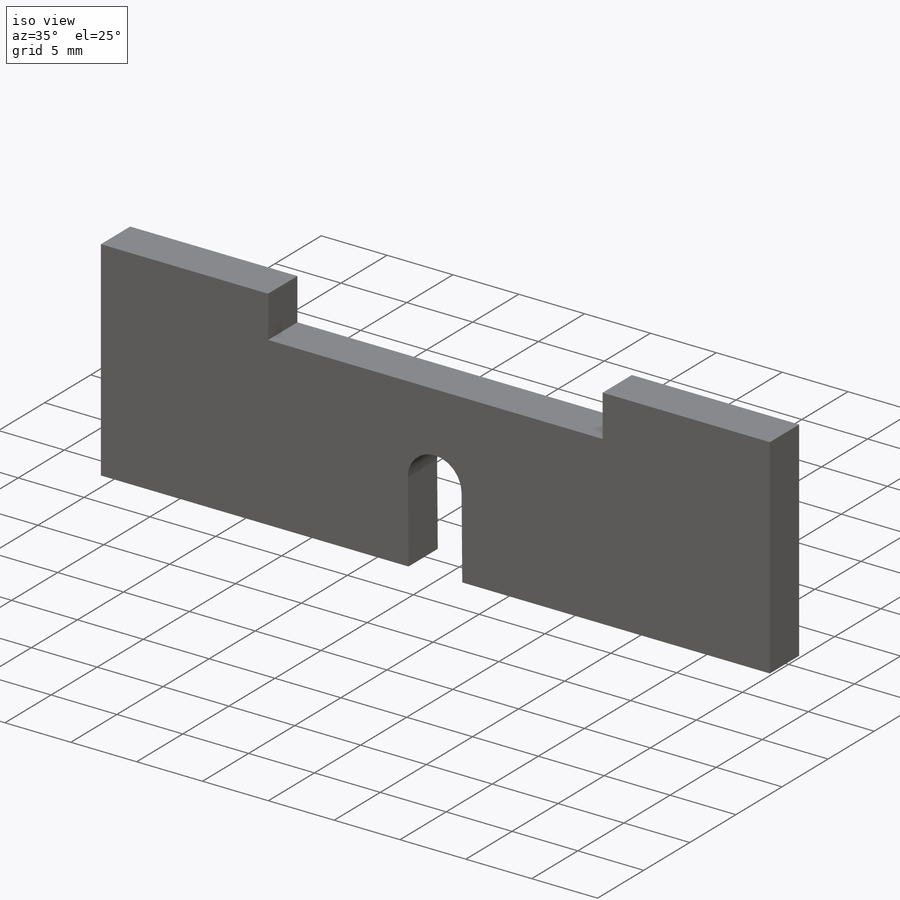
[diagram: iso view]
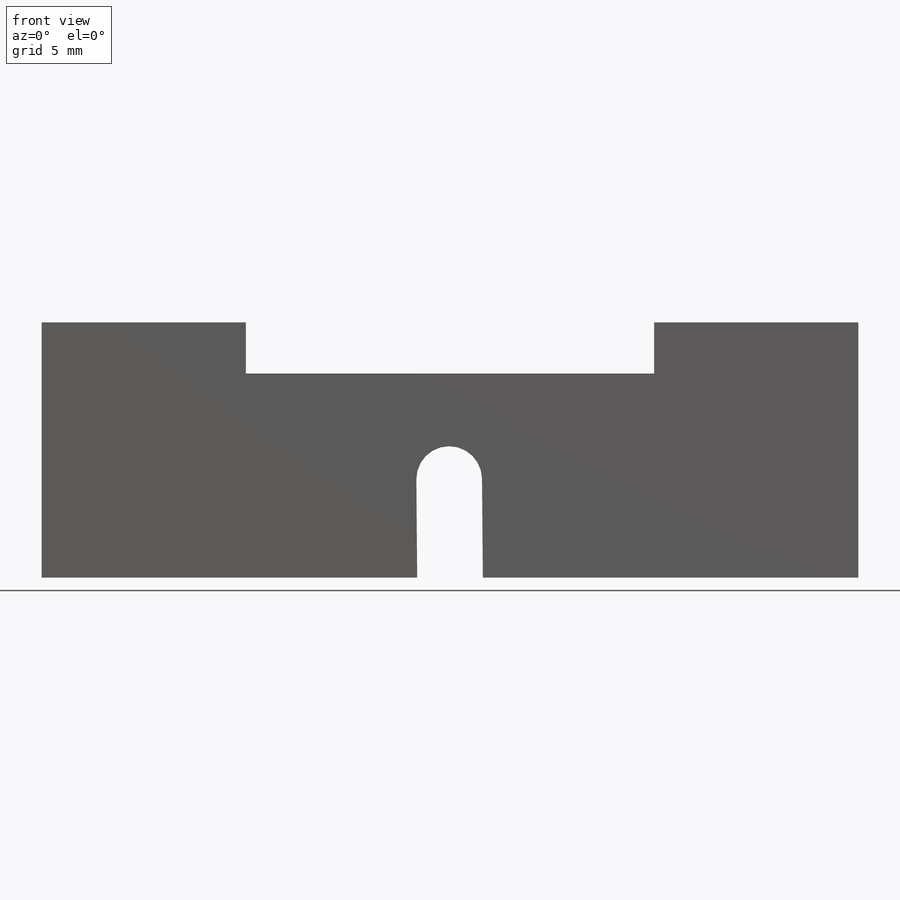
[diagram: front view]
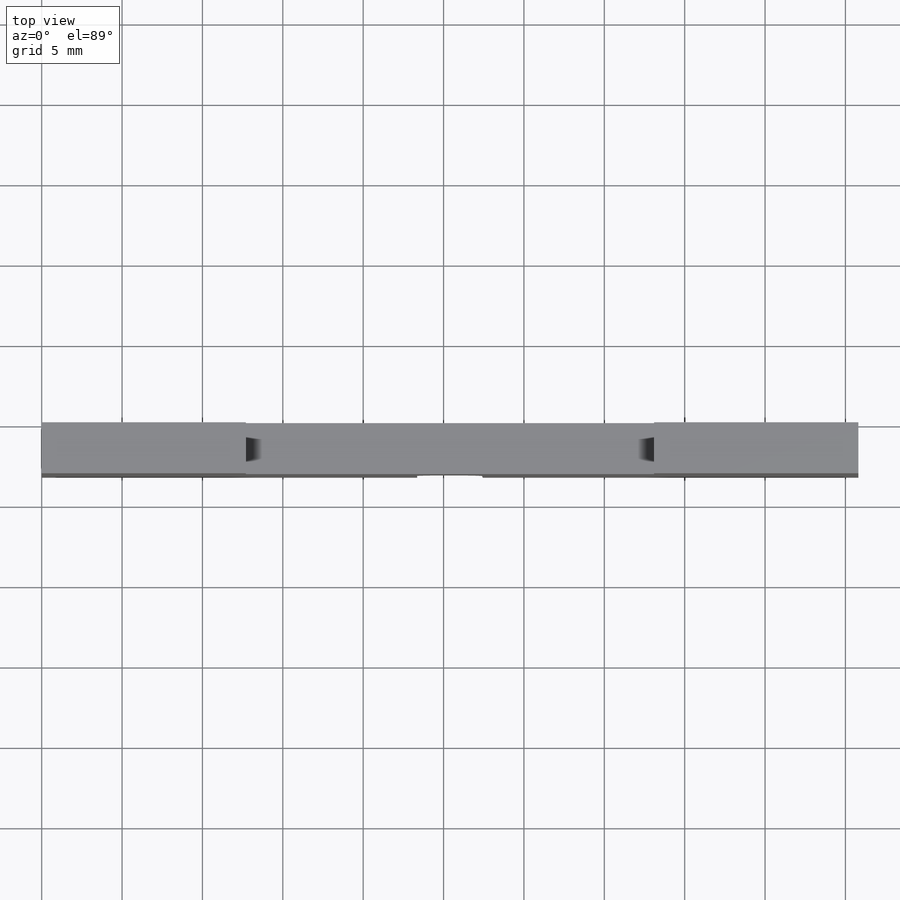
[diagram: top view]
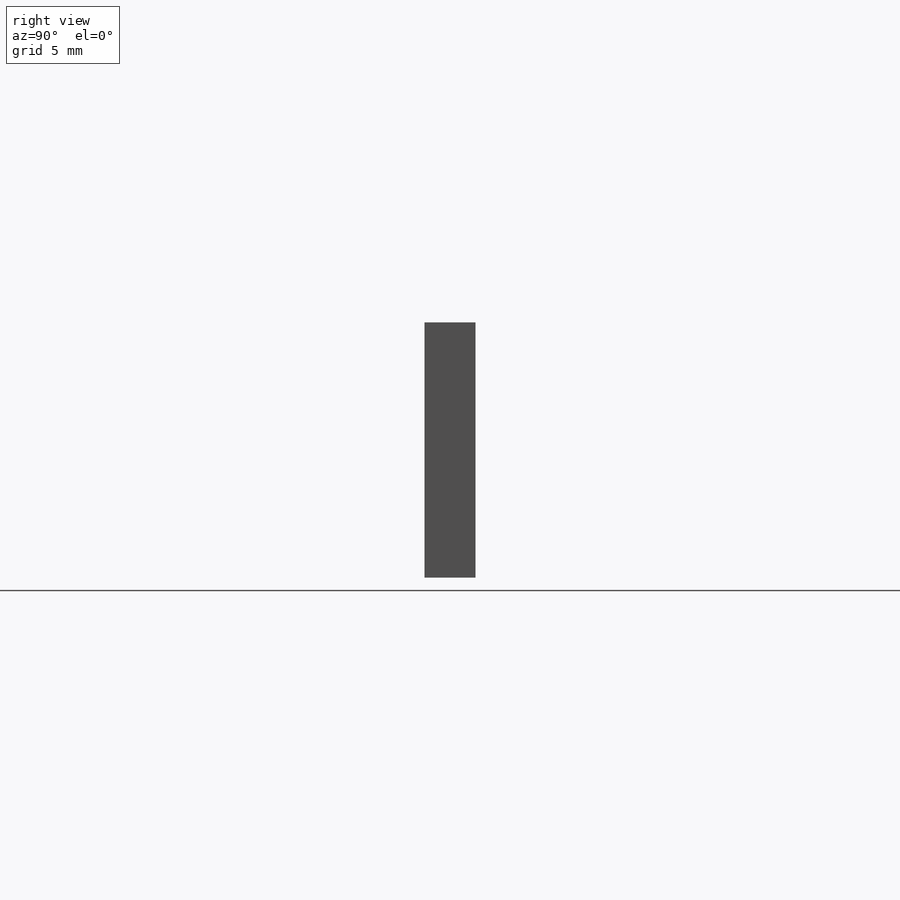
[diagram: right view]
SOLIDWORKS PART (.sldprt)
format: sldprt  version: not decoded by parser v0  size: 147,456 bytes
history: native  units: mm
features: sketch x3, extrude x2, material x1, pattern_linear x1, cut_extrude x1 (+16 scaffold rows collapsed)
feature tree (24):
  scaffold x16  (default folders/planes/origin — collapsed)
  material  "Material <not specified>"
  sketch  "Sketch1"  dims[D1=50.8mm D2=12.7mm]
  extrude  "Extrude1"  Depth=3.175mm
  sketch  "Sketch3"  dims[D1=3.175mm D2=12.7mm]
  extrude  "Extrude3"  Depth=3.175mm
  pattern_linear  "LPattern1"  Count1=2 Count2=1 Spacing1=38.1mm Spacing2=10mm
  sketch  "Sketch4"
  cut_extrude  "Extrude4"  [1 undecoded]
decode coverage: 5 of 7 modeling features carry decoded parameters
note: 1 parameter value undecoded
note: suppression state not decoded; provenance and decode notes live in map.json
